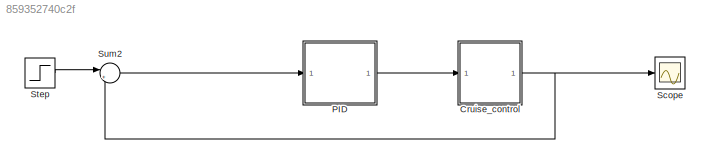
MODEL slx_859352740c2f
KIND model
CONFIG AbsTol = auto
CONFIG EnableMultiTasking = off
CONFIG FixedStep = auto
CONFIG MaxStep = auto
CONFIG MinStep = auto
CONFIG RelTol = 1e-3
CONFIG SampleTimeConstraint = Unconstrained
CONFIG SolverName = VariableStepAuto
CONFIG StartTime = 0.0
CONFIG StopTime = 300
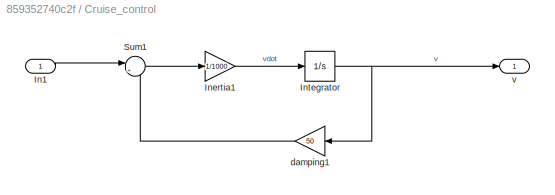
BLOCK [SubSystem] Cruise_control
  Ports = [1, 1]
  RequestExecContextInheritance = off
BLOCK [Inport] Cruise_control/In1
BLOCK [Gain] Cruise_control/Inertia1
  Gain = 1/1000
BLOCK [Integrator] Cruise_control/Integrator
  Ports = [1, 1]
BLOCK [Sum] Cruise_control/Sum1
  Inputs = |+-
  Ports = [2, 1]
BLOCK [Gain] Cruise_control/damping1
  Gain = 50
  NameLocation = top
BLOCK [Outport] Cruise_control/v
BLOCK [ModelReference] PID
  ModelNameDialog = Subsystem
  ModelReferenceVersion = 1.7
  Ports = [1, 1]
BLOCK [Scope] Scope
  Floating = off
  NumInputPorts = 1
  Ports = [1]
  ScopeSpecificationString = Simulink.scopes.TimeScopeBlockCfg('CurrentConfiguration', extmgr.ConfigurationSet(extmgr.Configuration('Core','General UI',true),extmgr.Configuration('Core','Source UI',true),extmgr.Configuration('Sources','WiredSimulink',true),extmgr.Configuration('Visuals','Time Domain',true,'SerializedDisplays',{struct('MinYLimReal','-0.13618','MaxYLimReal','1.22559','YLabelReal','','MinYLimMag','0.00000','MaxY...<+1334ch>
BLOCK [Step] Step
  SampleTime = 0
BLOCK [Sum] Sum2
  Inputs = |+-
  Ports = [2, 1]
LINE Cruise_control/In1:1 -> Cruise_control/Sum1:1
LINE Cruise_control/Inertia1:1 -> Cruise_control/Integrator:1
NET Cruise_control/Integrator:1 -> Cruise_control/damping1:1, Cruise_control/v:1
LINE Cruise_control/Sum1:1 -> Cruise_control/Inertia1:1
LINE Cruise_control/damping1:1 -> Cruise_control/Sum1:2
NET Cruise_control:1 -> Scope:1, Sum2:2
LINE PID:1 -> Cruise_control:1
LINE Step:1 -> Sum2:1
LINE Sum2:1 -> PID:1
note: NET lines group one-source signal fan-out (src -> all destinations, sorted); 1:1 wires keep LINE
